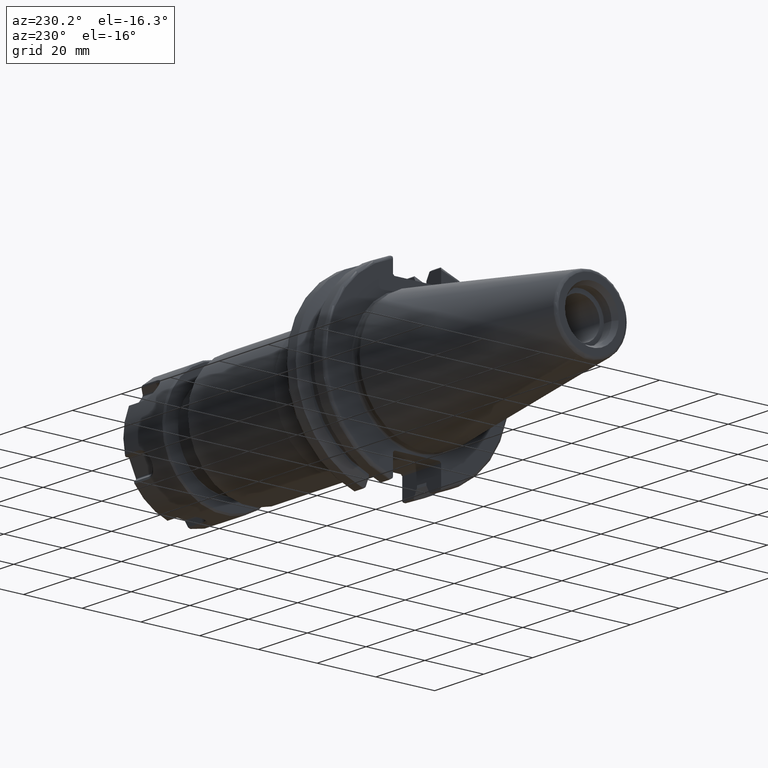
[diagram: clean part render]
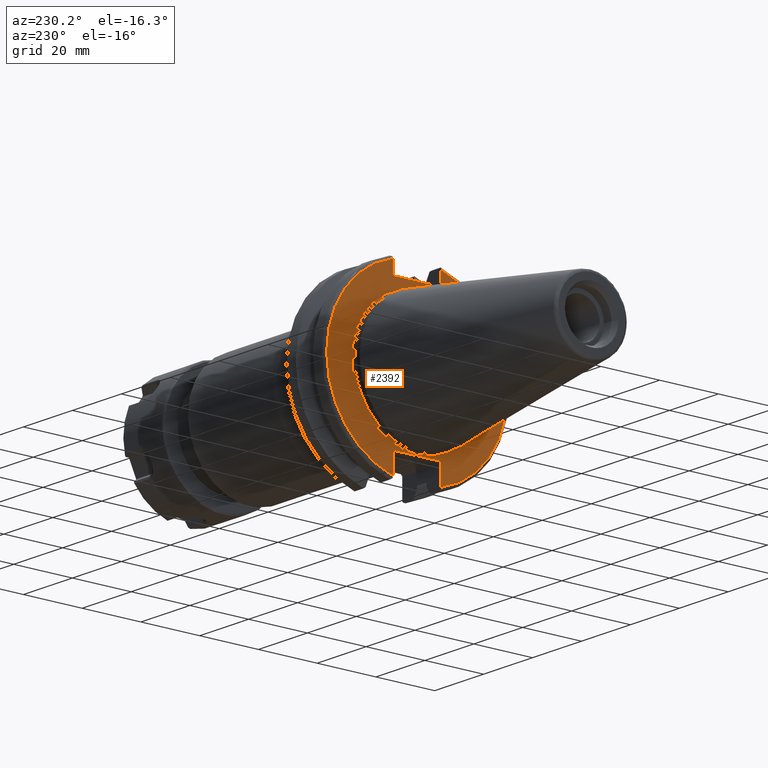
[diagram: same view with one face highlighted and labeled with its STEP entity id]
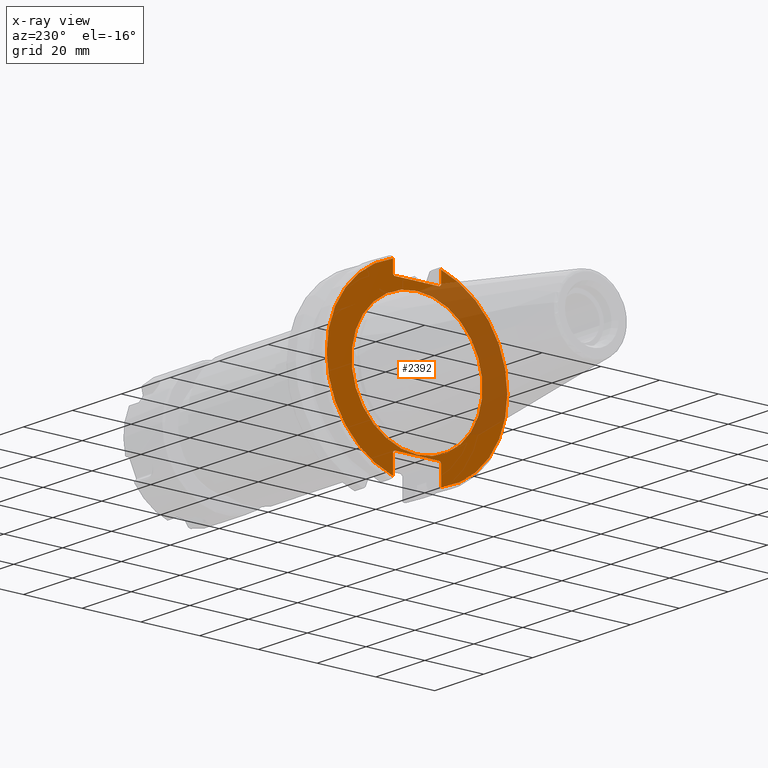
[diagram: x-ray of the same camera — body ghosted, the highlighted face saturated]
A machine part, auxiliary view. The second image highlights one B-rep face of the part: STEP entity #2392.
The next image is the same camera in x-ray: the body ghosted, the highlighted face saturated — about 32% of this face is hidden behind the body in this view.
In plain terms, the highlighted planar face has unit normal (-1, 0, 0).
Its self-contained STEP definition (entity closure, byte-faithful):
#224=FACE_BOUND('',#495,.T.);
#239=PLANE('',#2628);
#347=FACE_OUTER_BOUND('',#494,.T.);
#494=EDGE_LOOP('',(#1697,#1698,#1699,#1700,#1701,#1702,#1703,#1704,#1705,
#1706,#1707,#1708));
#495=EDGE_LOOP('',(#1709));
#643=LINE('',#3563,#807);
#644=LINE('',#3565,#808);
#645=LINE('',#3567,#809);
#646=LINE('',#3569,#810);
#647=LINE('',#3571,#811);
#648=LINE('',#3575,#812);
#649=LINE('',#3577,#813);
#650=LINE('',#3579,#814);
#651=LINE('',#3581,#815);
#652=LINE('',#3582,#816);
#807=VECTOR('',#2920,10.);
#808=VECTOR('',#2921,10.);
#809=VECTOR('',#2922,10.);
#810=VECTOR('',#2923,10.);
#811=VECTOR('',#2924,10.);
#812=VECTOR('',#2927,10.);
#813=VECTOR('',#2928,10.);
#814=VECTOR('',#2929,10.);
#815=VECTOR('',#2930,10.);
#816=VECTOR('',#2931,10.);
#979=CIRCLE('',#2626,22.3);
#981=CIRCLE('',#2629,30.75);
#982=CIRCLE('',#2630,30.75);
#1084=VERTEX_POINT('',#3554);
#1085=VERTEX_POINT('',#3559);
#1086=VERTEX_POINT('',#3560);
#1087=VERTEX_POINT('',#3562);
#1088=VERTEX_POINT('',#3564);
#1089=VERTEX_POINT('',#3566);
#1090=VERTEX_POINT('',#3568);
#1091=VERTEX_POINT('',#3570);
#1092=VERTEX_POINT('',#3572);
#1093=VERTEX_POINT('',#3574);
#1094=VERTEX_POINT('',#3576);
#1095=VERTEX_POINT('',#3578);
#1096=VERTEX_POINT('',#3580);
#1319=EDGE_CURVE('',#1084,#1084,#979,.T.);
#1321=EDGE_CURVE('',#1085,#1086,#981,.T.);
#1322=EDGE_CURVE('',#1085,#1087,#643,.T.);
#1323=EDGE_CURVE('',#1088,#1087,#644,.T.);
#1324=EDGE_CURVE('',#1088,#1089,#645,.T.);
#1325=EDGE_CURVE('',#1090,#1089,#646,.T.);
#1326=EDGE_CURVE('',#1090,#1091,#647,.T.);
#1327=EDGE_CURVE('',#1092,#1091,#982,.T.);
#1328=EDGE_CURVE('',#1092,#1093,#648,.T.);
#1329=EDGE_CURVE('',#1094,#1093,#649,.T.);
#1330=EDGE_CURVE('',#1094,#1095,#650,.T.);
#1331=EDGE_CURVE('',#1096,#1095,#651,.T.);
#1332=EDGE_CURVE('',#1096,#1086,#652,.T.);
#1697=ORIENTED_EDGE('',*,*,#1321,.F.);
#1698=ORIENTED_EDGE('',*,*,#1322,.T.);
#1699=ORIENTED_EDGE('',*,*,#1323,.F.);
#1700=ORIENTED_EDGE('',*,*,#1324,.T.);
#1701=ORIENTED_EDGE('',*,*,#1325,.F.);
#1702=ORIENTED_EDGE('',*,*,#1326,.T.);
#1703=ORIENTED_EDGE('',*,*,#1327,.F.);
#1704=ORIENTED_EDGE('',*,*,#1328,.T.);
#1705=ORIENTED_EDGE('',*,*,#1329,.F.);
#1706=ORIENTED_EDGE('',*,*,#1330,.T.);
#1707=ORIENTED_EDGE('',*,*,#1331,.F.);
#1708=ORIENTED_EDGE('',*,*,#1332,.T.);
#1709=ORIENTED_EDGE('',*,*,#1319,.F.);
#2392=ADVANCED_FACE('',(#347,#224),#239,.T.);
#2626=AXIS2_PLACEMENT_3D('',#3556,#2912,#2913);
#2628=AXIS2_PLACEMENT_3D('',#3558,#2916,#2917);
#2629=AXIS2_PLACEMENT_3D('',#3561,#2918,#2919);
#2630=AXIS2_PLACEMENT_3D('',#3573,#2925,#2926);
#2912=DIRECTION('center_axis',(-1.,0.,0.));
#2913=DIRECTION('ref_axis',(0.,-1.,1.83697019872103E-16));
#2916=DIRECTION('center_axis',(-1.,0.,0.));
#2917=DIRECTION('ref_axis',(0.,0.,1.));
#2918=DIRECTION('center_axis',(1.,0.,0.));
#2919=DIRECTION('ref_axis',(0.,-1.,1.60812264967664E-16));
#2920=DIRECTION('',(0.,0.,-1.));
#2921=DIRECTION('',(0.,-0.70710678118655,0.707106781186545));
#2922=DIRECTION('',(0.,1.,0.));
#2923=DIRECTION('',(0.,-0.707106781186549,-0.707106781186546));
#2924=DIRECTION('',(0.,0.,1.));
#2925=DIRECTION('center_axis',(1.,0.,0.));
#2926=DIRECTION('ref_axis',(0.,1.,1.60812264967664E-16));
#2927=DIRECTION('',(0.,0.,1.));
#2928=DIRECTION('',(0.,0.707106781186549,-0.707106781186546));
#2929=DIRECTION('',(0.,-1.,0.));
#2930=DIRECTION('',(0.,0.707106781186549,0.707106781186546));
#2931=DIRECTION('',(0.,0.,-1.));
#3554=CARTESIAN_POINT('',(3.175,-2.7309623620986E-15,22.3));
#3556=CARTESIAN_POINT('Origin',(3.175,0.,0.));
#3558=CARTESIAN_POINT('Origin',(3.175,31.75,0.));
#3559=CARTESIAN_POINT('',(3.175,-8.18999999999999,29.6392712461019));
#3560=CARTESIAN_POINT('',(3.175,-8.19,-29.6392712461019));
#3561=CARTESIAN_POINT('Origin',(3.175,0.,0.));
#3562=CARTESIAN_POINT('',(3.175,-8.18999999999999,25.5));
#3563=CARTESIAN_POINT('',(3.175,-8.18999999999999,12.5));
#3564=CARTESIAN_POINT('',(3.175,-7.68999999999999,25.));
#3565=CARTESIAN_POINT('',(3.175,8.29500000000007,9.01500000000004));
#3566=CARTESIAN_POINT('',(3.175,7.69,25.));
#3567=CARTESIAN_POINT('',(3.175,15.875,25.));
#3568=CARTESIAN_POINT('',(3.175,8.19,25.5));
#3569=CARTESIAN_POINT('',(3.175,7.58000000000002,24.89));
#3570=CARTESIAN_POINT('',(3.175,8.19,29.6392712461019));
#3571=CARTESIAN_POINT('',(3.175,8.19,12.5));
#3572=CARTESIAN_POINT('',(3.175,8.18999999999999,-29.6392712461019));
#3573=CARTESIAN_POINT('Origin',(3.175,0.,0.));
#3574=CARTESIAN_POINT('',(3.175,8.18999999999999,-23.1));
#3575=CARTESIAN_POINT('',(3.175,8.18999999999999,-11.3));
#3576=CARTESIAN_POINT('',(3.175,7.69,-22.6));
#3577=CARTESIAN_POINT('',(3.175,8.18000000000002,-23.09));
#3578=CARTESIAN_POINT('',(3.175,-7.69,-22.6));
#3579=CARTESIAN_POINT('',(3.175,15.875,-22.6));
#3580=CARTESIAN_POINT('',(3.175,-8.19,-23.1));
#3581=CARTESIAN_POINT('',(3.175,7.69500000000004,-7.21500000000002));
#3582=CARTESIAN_POINT('',(3.175,-8.19,-11.3));